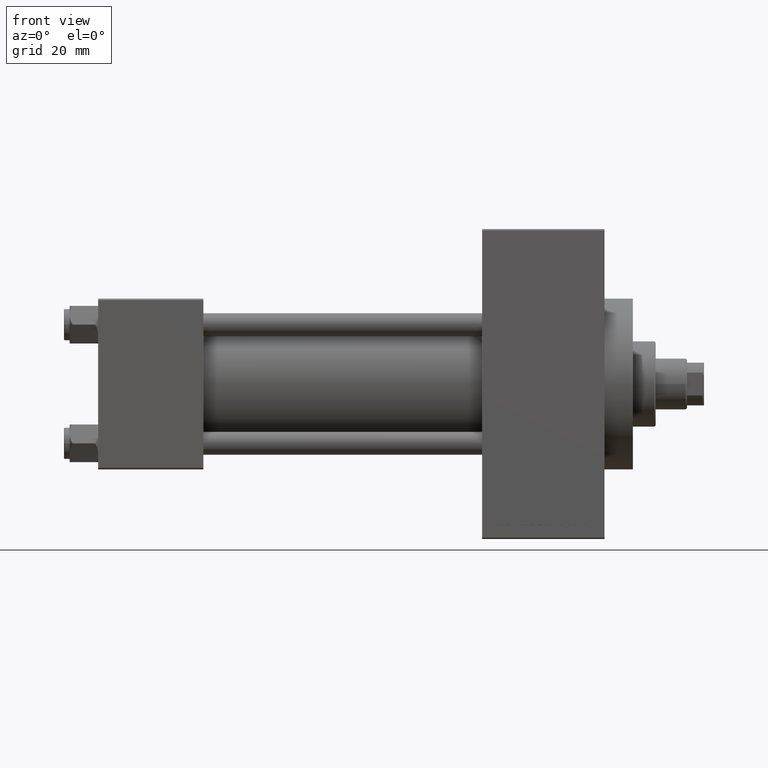
[diagram: clean part render]
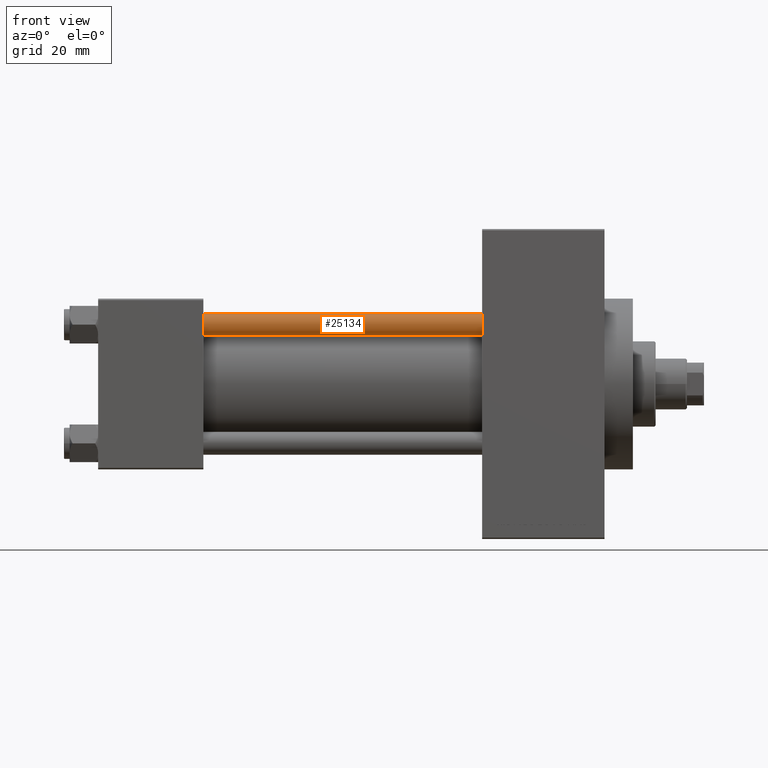
[diagram: same view with one face highlighted and labeled with its STEP entity id]
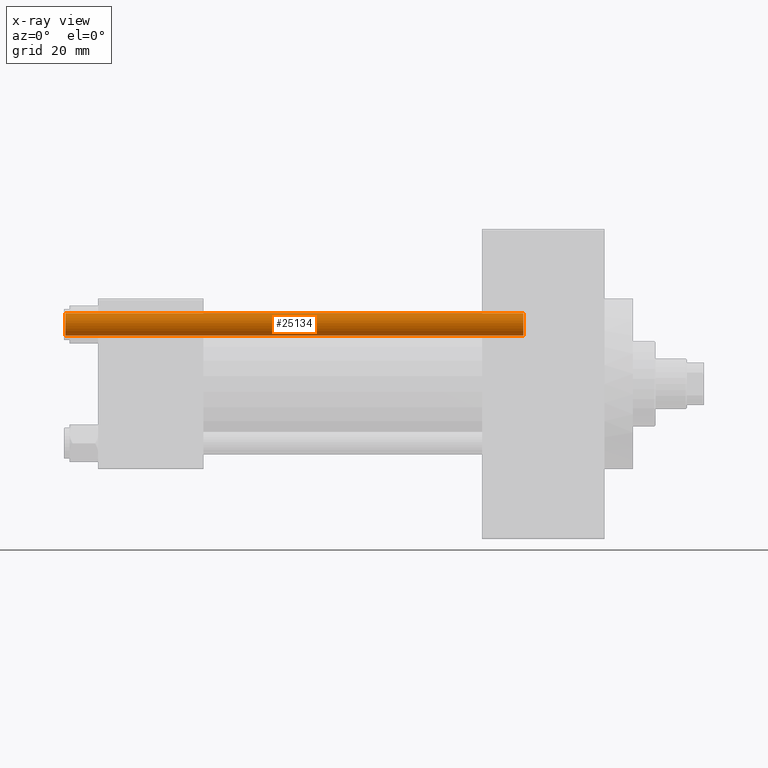
[diagram: x-ray of the same camera — body ghosted, the highlighted face saturated]
A machine part, front view. The second image highlights one B-rep face of the part: STEP entity #25134.
The next image is the same camera in x-ray: the body ghosted, the highlighted face saturated — about 0% of this face is hidden behind the body in this view.
In plain terms, the highlighted cylindrical surface (edge-blend (fillet) strip) has radius 4 mm, axis along (1, 0, 0).
Its self-contained STEP definition (entity closure, byte-faithful):
#1646 = VERTEX_POINT ( 'NONE', #4278 ) ;
#2880 = CARTESIAN_POINT ( 'NONE',  ( 4.000000000000000000, 4.898587196589412829E-16, 161.5000000000000284 ) ) ;
#3844 = CARTESIAN_POINT ( 'NONE',  ( 4.000000000000000000, 4.898587196589412829E-16, 162.0000000000000000 ) ) ;
#4278 = CARTESIAN_POINT ( 'NONE',  ( 4.000000000000000000, 4.898587196589412829E-16, 0.5000000000000281997 ) ) ;
#4695 = CIRCLE ( 'NONE', #24554, 4.000000000000000000 ) ;
#5056 = DIRECTION ( 'NONE',  ( 0.000000000000000000, 0.000000000000000000, -1.000000000000000000 ) ) ;
#5398 = DIRECTION ( 'NONE',  ( -0.000000000000000000, -0.000000000000000000, -1.000000000000000000 ) ) ;
#6860 = CIRCLE ( 'NONE', #41956, 4.000000000000000000 ) ;
#7414 = CARTESIAN_POINT ( 'NONE',  ( -4.000000000000000000, 0.000000000000000000, 161.5000000000000284 ) ) ;
#8663 = CARTESIAN_POINT ( 'NONE',  ( 0.000000000000000000, 0.000000000000000000, 161.5000000000000284 ) ) ;
#12500 = ORIENTED_EDGE ( 'NONE', *, *, #41148, .F. ) ;
#14623 = VECTOR ( 'NONE', #35503, 1000.000000000000000 ) ;
#16259 = ORIENTED_EDGE ( 'NONE', *, *, #22952, .T. ) ;
#16408 = DIRECTION ( 'NONE',  ( -1.000000000000000000, 0.000000000000000000, 0.000000000000000000 ) ) ;
#19856 = VECTOR ( 'NONE', #46834, 1000.000000000000000 ) ;
#19987 = FACE_OUTER_BOUND ( 'NONE', #43048, .T. ) ;
#21503 = CARTESIAN_POINT ( 'NONE',  ( -4.000000000000000000, 0.000000000000000000, 0.5000000000000281997 ) ) ;
#22952 = EDGE_CURVE ( 'NONE', #1646, #27092, #4695, .T. ) ;
#24554 = AXIS2_PLACEMENT_3D ( 'NONE', #25321, #29130, #39864 ) ;
#25134 = ADVANCED_FACE ( 'NONE', ( #19987 ), #38117, .T. ) ;
#25321 = CARTESIAN_POINT ( 'NONE',  ( 0.000000000000000000, 0.000000000000000000, 0.5000000000000281997 ) ) ;
#27092 = VERTEX_POINT ( 'NONE', #21503 ) ;
#29130 = DIRECTION ( 'NONE',  ( -0.000000000000000000, -0.000000000000000000, 1.000000000000000000 ) ) ;
#33515 = DIRECTION ( 'NONE',  ( 1.000000000000000000, 0.000000000000000000, 0.000000000000000000 ) ) ;
#33783 = AXIS2_PLACEMENT_3D ( 'NONE', #35026, #5398, #16408 ) ;
#33877 = VERTEX_POINT ( 'NONE', #2880 ) ;
#34799 = LINE ( 'NONE', #35277, #14623 ) ;
#35026 = CARTESIAN_POINT ( 'NONE',  ( 0.000000000000000000, 0.000000000000000000, 162.0000000000000000 ) ) ;
#35277 = CARTESIAN_POINT ( 'NONE',  ( -4.000000000000000000, 0.000000000000000000, 162.0000000000000000 ) ) ;
#35503 = DIRECTION ( 'NONE',  ( -0.000000000000000000, -0.000000000000000000, -1.000000000000000000 ) ) ;
#37157 = ORIENTED_EDGE ( 'NONE', *, *, #38247, .T. ) ;
#38117 = CYLINDRICAL_SURFACE ( 'NONE', #33783, 4.000000000000000000 ) ;
#38123 = EDGE_CURVE ( 'NONE', #45560, #33877, #6860, .T. ) ;
#38247 = EDGE_CURVE ( 'NONE', #33877, #1646, #43731, .T. ) ;
#39864 = DIRECTION ( 'NONE',  ( 1.000000000000000000, 0.000000000000000000, 0.000000000000000000 ) ) ;
#41148 = EDGE_CURVE ( 'NONE', #45560, #27092, #34799, .T. ) ;
#41956 = AXIS2_PLACEMENT_3D ( 'NONE', #8663, #5056, #33515 ) ;
#43048 = EDGE_LOOP ( 'NONE', ( #43228, #37157, #16259, #12500 ) ) ;
#43228 = ORIENTED_EDGE ( 'NONE', *, *, #38123, .T. ) ;
#43731 = LINE ( 'NONE', #3844, #19856 ) ;
#45560 = VERTEX_POINT ( 'NONE', #7414 ) ;
#46834 = DIRECTION ( 'NONE',  ( -0.000000000000000000, -0.000000000000000000, -1.000000000000000000 ) ) ;